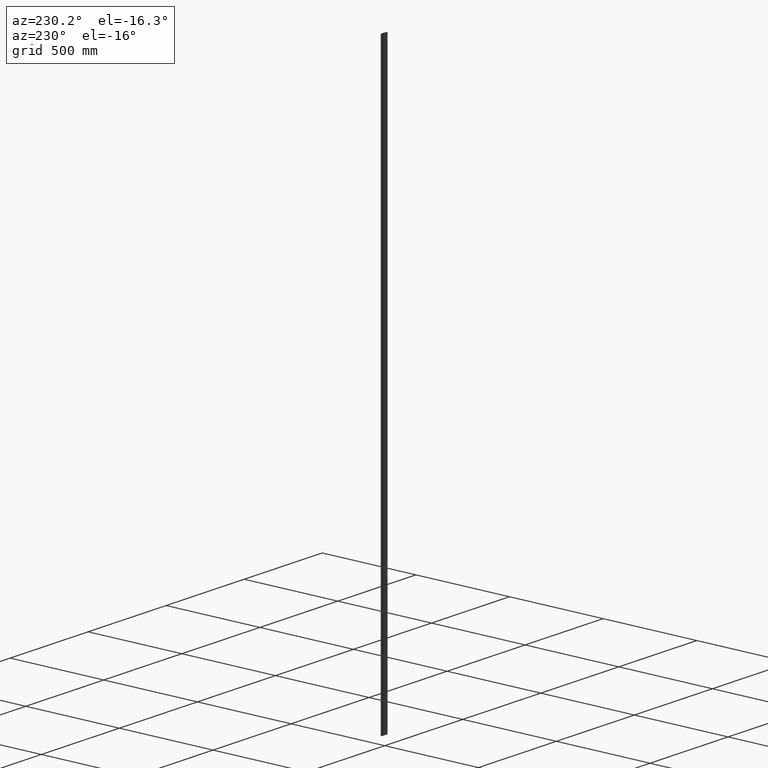
[diagram: clean part render]
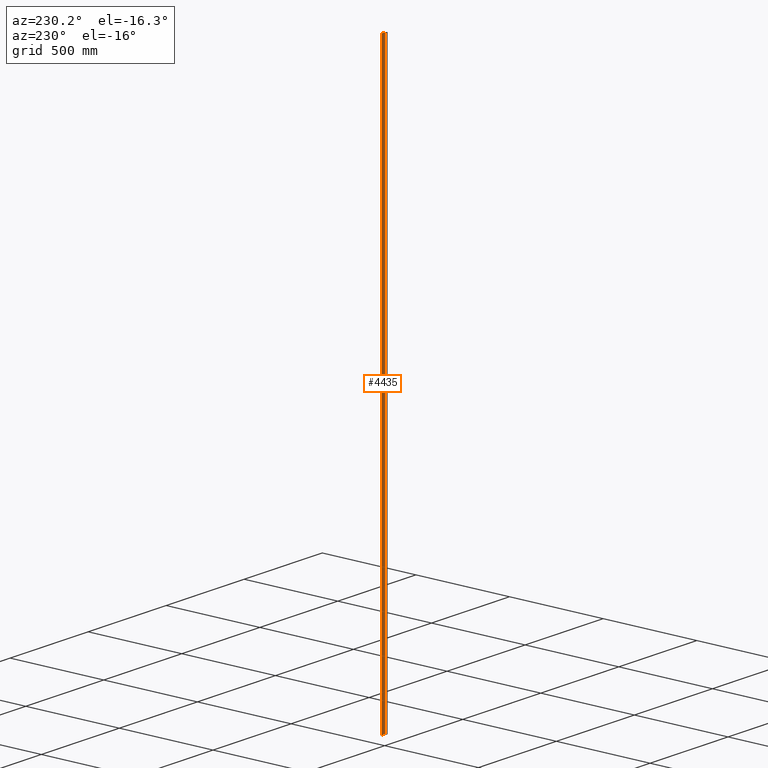
[diagram: same view with one face highlighted and labeled with its STEP entity id]
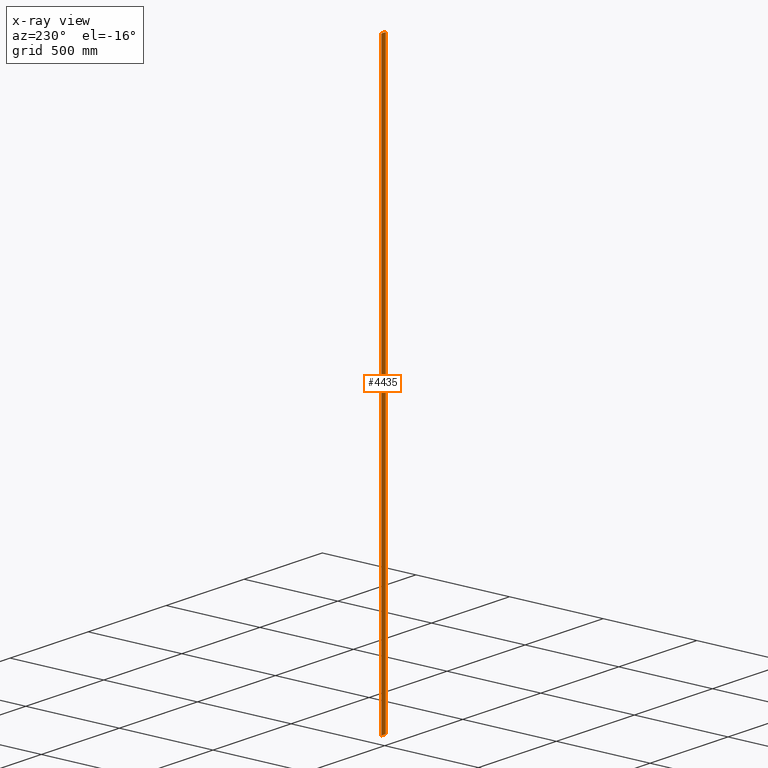
[diagram: x-ray of the same camera — body ghosted, the highlighted face saturated]
A machine part, auxiliary view. The second image highlights one B-rep face of the part: STEP entity #4435.
The next image is the same camera in x-ray: the body ghosted, the highlighted face saturated — about 0% of this face is hidden behind the body in this view.
In plain terms, the highlighted cylindrical surface (edge-blend (fillet) strip) has radius 40 mm, axis along (-0, -0, -1).
Its self-contained STEP definition (entity closure, byte-faithful):
#8 = FACE_OUTER_BOUND ( 'NONE', #8577, .T. ) ;
#26 = DIRECTION ( 'NONE',  ( 0.000000000000000000, 0.000000000000000000, 1.000000000000000000 ) ) ;
#159 = VECTOR ( 'NONE', #3081, 1000.000000000000000 ) ;
#697 = LINE ( 'NONE', #4524, #4448 ) ;
#787 = EDGE_CURVE ( 'NONE', #4796, #4942, #9567, .T. ) ;
#2421 = ORIENTED_EDGE ( 'NONE', *, *, #7257, .T. ) ;
#2883 = CARTESIAN_POINT ( 'NONE',  ( -13.12811449916178219, 5.784290514668888328, 1500.000000000000000 ) ) ;
#2982 = CARTESIAN_POINT ( 'NONE',  ( -13.12811449916178219, 5.784290514668888328, -1500.000000000000000 ) ) ;
#3044 = DIRECTION ( 'NONE',  ( -1.000000000000000000, 0.000000000000000000, 0.000000000000000000 ) ) ;
#3081 = DIRECTION ( 'NONE',  ( -0.000000000000000000, -0.000000000000000000, -1.000000000000000000 ) ) ;
#3156 = AXIS2_PLACEMENT_3D ( 'NONE', #8907, #5777, #6563 ) ;
#3211 = CARTESIAN_POINT ( 'NONE',  ( 13.12811449916177686, 5.784290514668888328, 1500.000000000000000 ) ) ;
#4435 = ADVANCED_FACE ( 'NONE', ( #8 ), #4874, .T. ) ;
#4445 = VERTEX_POINT ( 'NONE', #3211 ) ;
#4448 = VECTOR ( 'NONE', #9326, 1000.000000000000000 ) ;
#4524 = CARTESIAN_POINT ( 'NONE',  ( -13.12811449916178219, 5.784290514668888328, 1500.000000000000000 ) ) ;
#4796 = VERTEX_POINT ( 'NONE', #6873 ) ;
#4874 = CYLINDRICAL_SURFACE ( 'NONE', #3156, 39.99999999999998579 ) ;
#4942 = VERTEX_POINT ( 'NONE', #2982 ) ;
#5475 = ORIENTED_EDGE ( 'NONE', *, *, #5720, .F. ) ;
#5569 = CARTESIAN_POINT ( 'NONE',  ( 13.12811449916177686, 5.784290514668888328, 1500.000000000000000 ) ) ;
#5704 = CARTESIAN_POINT ( 'NONE',  ( 0.000000000000000000, -32.00000000000000000, 1500.000000000000000 ) ) ;
#5720 = EDGE_CURVE ( 'NONE', #4445, #9289, #10176, .T. ) ;
#5777 = DIRECTION ( 'NONE',  ( -0.000000000000000000, -0.000000000000000000, -1.000000000000000000 ) ) ;
#6134 = EDGE_CURVE ( 'NONE', #9289, #4942, #697, .T. ) ;
#6553 = ORIENTED_EDGE ( 'NONE', *, *, #6134, .F. ) ;
#6563 = DIRECTION ( 'NONE',  ( -1.000000000000000000, 0.000000000000000000, 0.000000000000000000 ) ) ;
#6873 = CARTESIAN_POINT ( 'NONE',  ( 13.12811449916177686, 5.784290514668888328, -1500.000000000000000 ) ) ;
#7173 = DIRECTION ( 'NONE',  ( -1.000000000000000000, 0.000000000000000000, 0.000000000000000000 ) ) ;
#7257 = EDGE_CURVE ( 'NONE', #4445, #4796, #8624, .T. ) ;
#7644 = AXIS2_PLACEMENT_3D ( 'NONE', #5704, #26, #7173 ) ;
#7799 = CARTESIAN_POINT ( 'NONE',  ( 0.000000000000000000, -32.00000000000000000, -1500.000000000000000 ) ) ;
#8516 = DIRECTION ( 'NONE',  ( 0.000000000000000000, 0.000000000000000000, 1.000000000000000000 ) ) ;
#8577 = EDGE_LOOP ( 'NONE', ( #9828, #6553, #5475, #2421 ) ) ;
#8624 = LINE ( 'NONE', #5569, #159 ) ;
#8907 = CARTESIAN_POINT ( 'NONE',  ( 0.000000000000000000, -32.00000000000000000, 1500.000000000000000 ) ) ;
#9169 = AXIS2_PLACEMENT_3D ( 'NONE', #7799, #8516, #3044 ) ;
#9289 = VERTEX_POINT ( 'NONE', #2883 ) ;
#9326 = DIRECTION ( 'NONE',  ( -0.000000000000000000, -0.000000000000000000, -1.000000000000000000 ) ) ;
#9567 = CIRCLE ( 'NONE', #9169, 39.99999999999998579 ) ;
#9828 = ORIENTED_EDGE ( 'NONE', *, *, #787, .T. ) ;
#10176 = CIRCLE ( 'NONE', #7644, 39.99999999999998579 ) ;